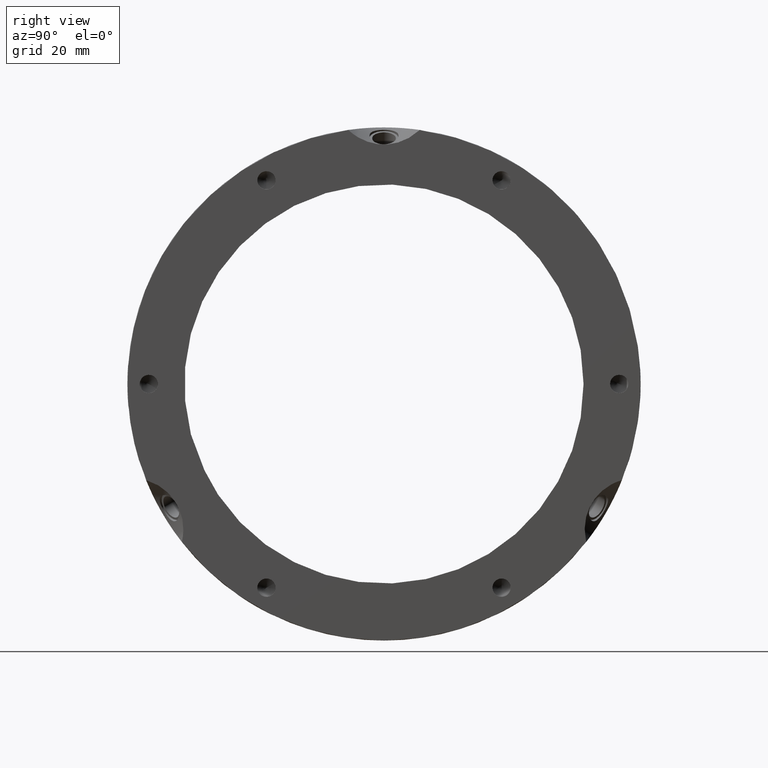
[diagram: clean part render]
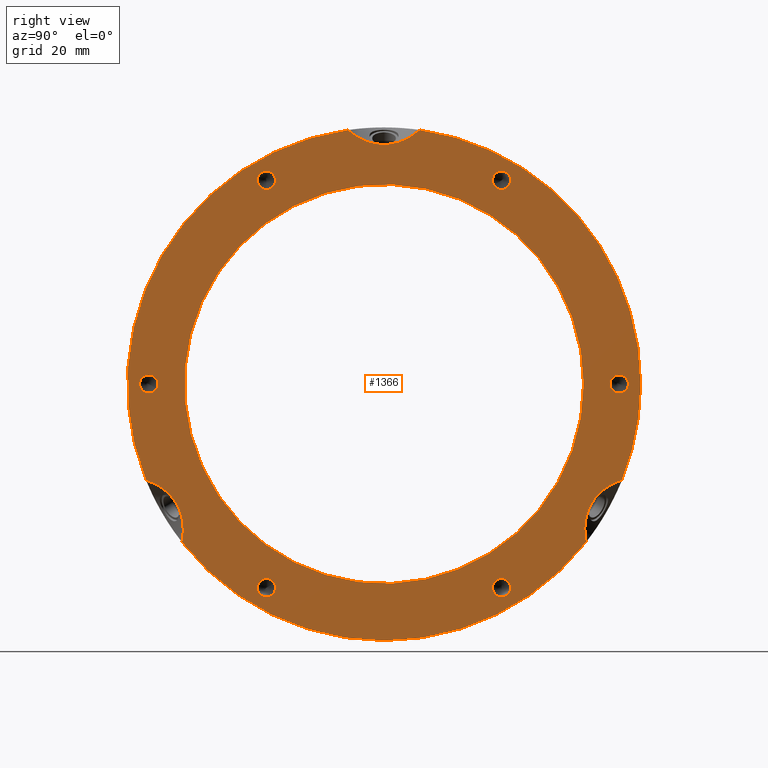
[diagram: same view with one face highlighted and labeled with its STEP entity id]
A machine part, right view. The second image highlights one B-rep face of the part: STEP entity #1366.
In plain terms, the highlighted planar face has unit normal (1, 0, 0).
Its self-contained STEP definition (entity closure, byte-faithful):
#165=CARTESIAN_POINT('',(31.999999999999986,38.478718707889826,69.84709581221621));
#166=VERTEX_POINT('',#165);
#167=CARTESIAN_POINT('',(31.999999999999986,41.250000000000028,71.44709581221619));
#168=DIRECTION('',(-1.0,0.0,0.0));
#169=DIRECTION('',(0.0,-0.866025403784439,-0.499999999999999));
#170=AXIS2_PLACEMENT_3D('',#167,#168,#169);
#171=CIRCLE('',#170,3.200000000000001);
#172=EDGE_CURVE('',#166,#166,#171,.T.);
#277=CARTESIAN_POINT('',(31.999999999999986,79.728718707889797,1.600000000000006));
#278=VERTEX_POINT('',#277);
#279=CARTESIAN_POINT('',(31.999999999999986,82.500000000000014,4.440892E-015));
#280=DIRECTION('',(-1.0,0.0,0.0));
#281=DIRECTION('',(0.0,-0.866025403784438,0.5));
#282=AXIS2_PLACEMENT_3D('',#279,#280,#281);
#283=CIRCLE('',#282,3.200000000000001);
#284=EDGE_CURVE('',#278,#278,#283,.T.);
#389=CARTESIAN_POINT('',(31.999999999999986,41.250000000000043,-68.247095812216187));
#390=VERTEX_POINT('',#389);
#391=CARTESIAN_POINT('',(31.999999999999986,41.250000000000036,-71.447095812216176));
#392=DIRECTION('',(-1.0,0.0,0.0));
#393=DIRECTION('',(0.0,0.0,1.0));
#394=AXIS2_PLACEMENT_3D('',#391,#392,#393);
#395=CIRCLE('',#394,3.200000000000001);
#396=EDGE_CURVE('',#390,#390,#395,.T.);
#501=CARTESIAN_POINT('',(31.999999999999986,-38.478718707889776,-69.84709581221621));
#502=VERTEX_POINT('',#501);
#503=CARTESIAN_POINT('',(31.999999999999986,-41.249999999999986,-71.447095812216205));
#504=DIRECTION('',(-1.0,0.0,0.0));
#505=DIRECTION('',(0.0,0.866025403784439,0.5));
#506=AXIS2_PLACEMENT_3D('',#503,#504,#505);
#507=CIRCLE('',#506,3.200000000000001);
#508=EDGE_CURVE('',#502,#502,#507,.T.);
#613=CARTESIAN_POINT('',(31.999999999999986,-79.728718707889797,-1.600000000000037));
#614=VERTEX_POINT('',#613);
#615=CARTESIAN_POINT('',(31.999999999999986,-82.5,-3.552714E-014));
#616=DIRECTION('',(-1.0,0.0,0.0));
#617=DIRECTION('',(0.0,0.866025403784439,-0.5));
#618=AXIS2_PLACEMENT_3D('',#615,#616,#617);
#619=CIRCLE('',#618,3.200000000000001);
#620=EDGE_CURVE('',#614,#614,#619,.T.);
#650=CARTESIAN_POINT('',(31.999999999999986,-41.250000000000043,68.247095812216173));
#651=VERTEX_POINT('',#650);
#652=CARTESIAN_POINT('',(31.999999999999986,-41.250000000000043,71.447095812216176));
#653=DIRECTION('',(-1.0,0.0,0.0));
#654=DIRECTION('',(0.0,0.0,-1.0));
#655=AXIS2_PLACEMENT_3D('',#652,#653,#654);
#656=CIRCLE('',#655,3.200000000000001);
#657=EDGE_CURVE('',#651,#651,#656,.T.);
#873=CARTESIAN_POINT('',(31.999999999999979,70.901105695192655,-55.434945758060586));
#874=VERTEX_POINT('',#873);
#875=CARTESIAN_POINT('',(31.999999999999979,83.458624131489159,-33.684685809412201));
#876=VERTEX_POINT('',#875);
#877=CARTESIAN_POINT('',(31.999999999999986,92.74613391789282,-53.547005383792587));
#878=DIRECTION('',(-1.0,0.0,0.0));
#879=DIRECTION('',(0.0,-0.866025403784438,0.5));
#880=AXIS2_PLACEMENT_3D('',#877,#878,#879);
#881=ELLIPSE('',#880,23.094010767585036,20.000000000000004);
#882=EDGE_CURVE('',#874,#876,#881,.T.);
#1044=CARTESIAN_POINT('',(31.999999999999979,-83.458624131489159,-33.684685809412173));
#1045=VERTEX_POINT('',#1044);
#1046=CARTESIAN_POINT('',(31.999999999999979,-70.90110569519274,-55.434945758060479));
#1047=VERTEX_POINT('',#1046);
#1048=CARTESIAN_POINT('',(31.999999999999986,-92.746133917892877,-53.547005383792509));
#1049=DIRECTION('',(-1.0,0.0,0.0));
#1050=DIRECTION('',(0.0,0.866025403784439,0.5));
#1051=AXIS2_PLACEMENT_3D('',#1048,#1049,#1050);
#1052=ELLIPSE('',#1051,23.094010767585036,20.0);
#1053=EDGE_CURVE('',#1045,#1047,#1052,.T.);
#1123=CARTESIAN_POINT('',(31.999999999999979,0.0,0.0));
#1124=DIRECTION('',(1.0,0.0,0.0));
#1125=DIRECTION('',(0.0,1.0,0.0));
#1126=AXIS2_PLACEMENT_3D('',#1123,#1124,#1125);
#1127=CIRCLE('',#1126,90.0);
#1128=EDGE_CURVE('',#1047,#874,#1127,.T.);
#1131=CARTESIAN_POINT('',(31.999999999999979,-12.55751843629649,89.119631567472695));
#1132=VERTEX_POINT('',#1131);
#1133=CARTESIAN_POINT('',(31.999999999999979,0.0,0.0));
#1134=DIRECTION('',(1.0,0.0,0.0));
#1135=DIRECTION('',(0.0,1.0,0.0));
#1136=AXIS2_PLACEMENT_3D('',#1133,#1134,#1135);
#1137=CIRCLE('',#1136,90.0);
#1138=EDGE_CURVE('',#1132,#1045,#1137,.T.);
#1140=CARTESIAN_POINT('',(31.999999999999979,12.55751843629649,89.119631567472695));
#1141=VERTEX_POINT('',#1140);
#1167=CARTESIAN_POINT('',(31.999999999999979,0.0,0.0));
#1168=DIRECTION('',(1.0,0.0,0.0));
#1169=DIRECTION('',(0.0,1.0,0.0));
#1170=AXIS2_PLACEMENT_3D('',#1167,#1168,#1169);
#1171=CIRCLE('',#1170,90.0);
#1172=EDGE_CURVE('',#876,#1141,#1171,.T.);
#1310=CARTESIAN_POINT('',(31.999999999999986,0.0,107.09401076758505));
#1311=DIRECTION('',(-1.0,0.0,0.0));
#1312=DIRECTION('',(0.0,0.0,-1.0));
#1313=AXIS2_PLACEMENT_3D('',#1310,#1311,#1312);
#1314=ELLIPSE('',#1313,23.09401076758504,20.000000000000004);
#1315=EDGE_CURVE('',#1141,#1132,#1314,.T.);
#1324=CARTESIAN_POINT('',(31.999999999999986,80.0,0.0));
#1325=DIRECTION('',(1.0,0.0,0.0));
#1326=DIRECTION('',(0.0,0.0,-1.0));
#1327=AXIS2_PLACEMENT_3D('',#1324,#1325,#1326);
#1328=PLANE('',#1327);
#1329=ORIENTED_EDGE('',*,*,#882,.T.);
#1330=ORIENTED_EDGE('',*,*,#1172,.T.);
#1331=ORIENTED_EDGE('',*,*,#1315,.T.);
#1332=ORIENTED_EDGE('',*,*,#1138,.T.);
#1333=ORIENTED_EDGE('',*,*,#1053,.T.);
#1334=ORIENTED_EDGE('',*,*,#1128,.T.);
#1335=EDGE_LOOP('',(#1329,#1330,#1331,#1332,#1333,#1334));
#1336=FACE_OUTER_BOUND('',#1335,.T.);
#1337=ORIENTED_EDGE('',*,*,#172,.T.);
#1338=EDGE_LOOP('',(#1337));
#1339=FACE_BOUND('',#1338,.T.);
#1340=ORIENTED_EDGE('',*,*,#284,.T.);
#1341=EDGE_LOOP('',(#1340));
#1342=FACE_BOUND('',#1341,.T.);
#1343=ORIENTED_EDGE('',*,*,#396,.T.);
#1344=EDGE_LOOP('',(#1343));
#1345=FACE_BOUND('',#1344,.T.);
#1346=ORIENTED_EDGE('',*,*,#508,.T.);
#1347=EDGE_LOOP('',(#1346));
#1348=FACE_BOUND('',#1347,.T.);
#1349=ORIENTED_EDGE('',*,*,#620,.T.);
#1350=EDGE_LOOP('',(#1349));
#1351=FACE_BOUND('',#1350,.T.);
#1352=ORIENTED_EDGE('',*,*,#657,.T.);
#1353=EDGE_LOOP('',(#1352));
#1354=FACE_BOUND('',#1353,.T.);
#1355=CARTESIAN_POINT('',(31.999999999999986,70.0,0.0));
#1356=VERTEX_POINT('',#1355);
#1357=CARTESIAN_POINT('',(31.999999999999986,0.0,0.0));
#1358=DIRECTION('',(1.0,0.0,0.0));
#1359=DIRECTION('',(0.0,1.0,0.0));
#1360=AXIS2_PLACEMENT_3D('',#1357,#1358,#1359);
#1361=CIRCLE('',#1360,70.0);
#1362=EDGE_CURVE('',#1356,#1356,#1361,.T.);
#1363=ORIENTED_EDGE('',*,*,#1362,.F.);
#1364=EDGE_LOOP('',(#1363));
#1365=FACE_BOUND('',#1364,.T.);
#1366=ADVANCED_FACE('',(#1336,#1339,#1342,#1345,#1348,#1351,#1354,#1365),#1328,.T.);